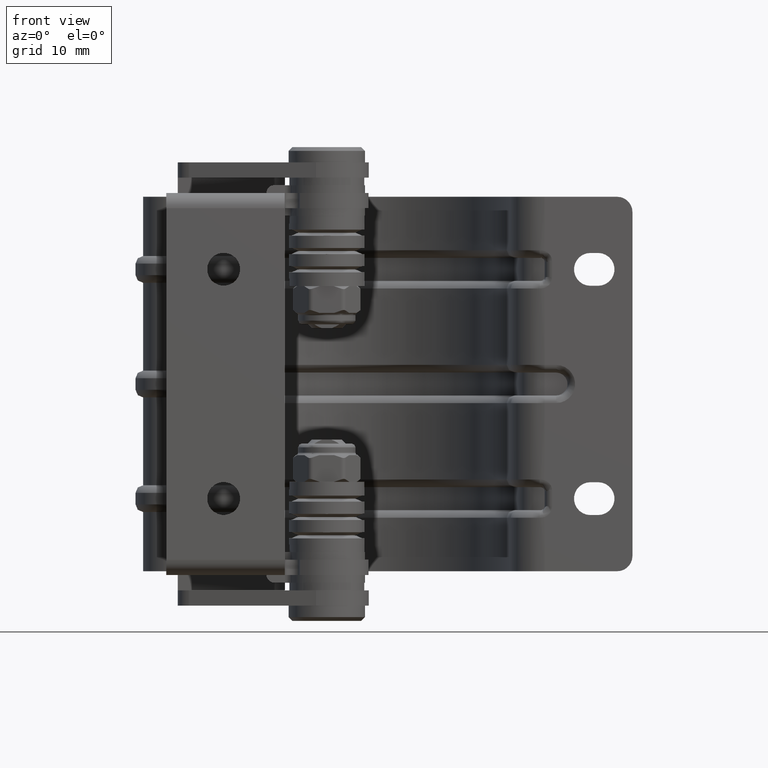
[diagram: clean part render]
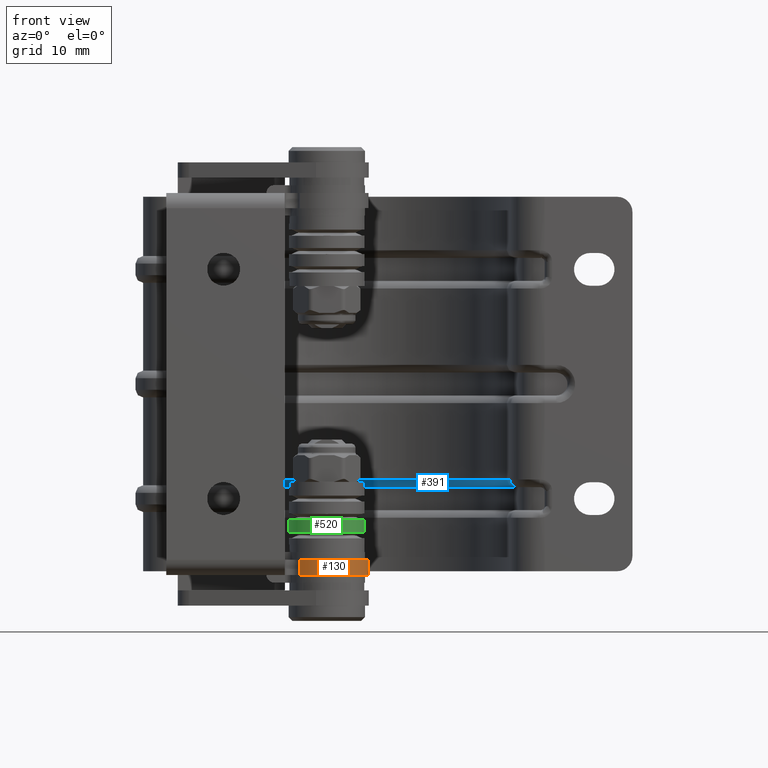
[diagram: same view with three faces highlighted in distinct colors, each labeled with its STEP entity id]
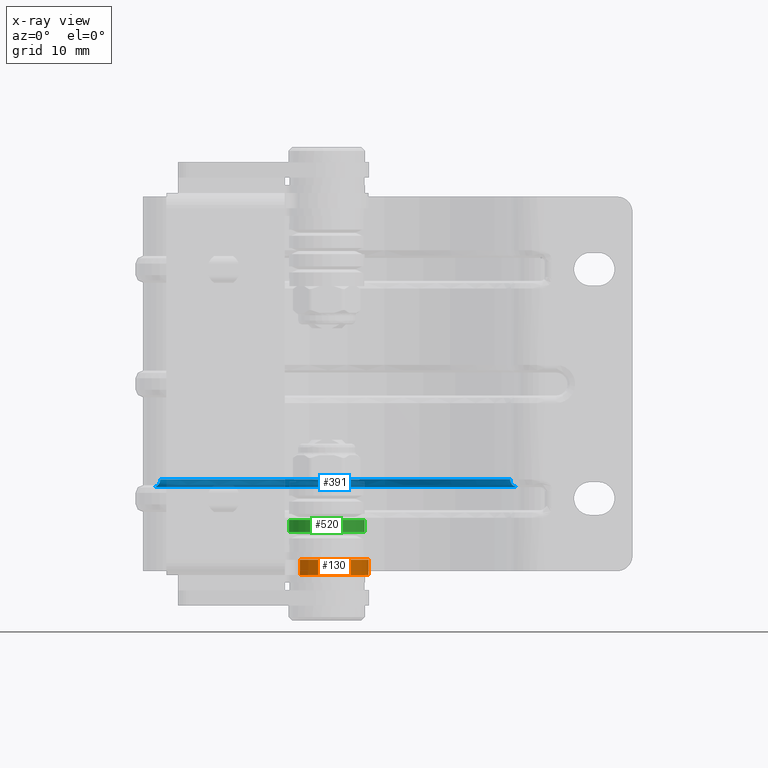
[diagram: x-ray of the same camera — body ghosted, the three highlighted faces saturated]
A machine part, front view with three faces highlighted in distinct colors.
The next image is the same camera in x-ray (body ghosted, the three faces saturated) — at least one of them is partly hidden behind the body in this view.
Their STEP definitions:

[orange] entity #130 — the highlighted cylindrical surface (partial cylindrical patch) has radius 5.5 mm, axis along (0, 0, -1).
#130=ADVANCED_FACE('',(#755),#754,.T.);
#754=CYLINDRICAL_SURFACE('',#5247,5.50000000000E+00);
#755=FACE_OUTER_BOUND('',#5248,.T.);
#5244=CARTESIAN_POINT('',(0.00000000000E+00,0.00000000000E+00,-2.40000000000E+01));
#5245=DIRECTION('',(-0.00000000000E+00,0.00000000000E+00,-1.00000000000E+00));
#5246=DIRECTION('',(-1.00000000000E+00,-0.00000000000E+00,-0.00000000000E+00));
#5247=AXIS2_PLACEMENT_3D('',#5244,#5245,#5246);
#5248=EDGE_LOOP('',(#9694,#9695,#9696,#9697));
#9694=ORIENTED_EDGE('',*,*,#11793,.T.);
#9695=ORIENTED_EDGE('',*,*,#11829,.F.);
#9696=ORIENTED_EDGE('',*,*,#11811,.T.);
#9697=ORIENTED_EDGE('',*,*,#11830,.F.);
#11793=EDGE_CURVE('',#13199,#13200,#13201,.T.);
#11811=EDGE_CURVE('',#13323,#13316,#13324,.T.);
#11829=EDGE_CURVE('',#13323,#13200,#13442,.T.);
#11830=EDGE_CURVE('',#13199,#13316,#13448,.T.);
#13199=VERTEX_POINT('',#20250);
#13200=VERTEX_POINT('',#20251);
#13201=CIRCLE('',#20255,5.50000000000E+00);
#13316=VERTEX_POINT('',#20324);
#13323=VERTEX_POINT('',#20328);
#13324=CIRCLE('',#20332,5.50000000000E+00);
#13442=LINE('',#20402,#20403);
#13448=LINE('',#20405,#20406);
#20250=CARTESIAN_POINT('',(-3.50000000000E+00,-4.24264068712E+00,-2.50000000000E+01));
#20251=CARTESIAN_POINT('',(-3.50000000000E+00,4.24264068712E+00,-2.50000000000E+01));
#20252=CARTESIAN_POINT('',(0.00000000000E+00,0.00000000000E+00,-2.50000000000E+01));
#20253=DIRECTION('',(0.00000000000E+00,0.00000000000E+00,1.00000000000E+00));
#20254=DIRECTION('',(-6.36363636363E-01,-7.71389215840E-01,0.00000000000E+00));
#20255=AXIS2_PLACEMENT_3D('',#20252,#20253,#20254);
#20324=CARTESIAN_POINT('',(-3.50000000000E+00,-4.24264068712E+00,-2.30000000000E+01));
#20328=CARTESIAN_POINT('',(-3.50000000000E+00,4.24264068712E+00,-2.30000000000E+01));
#20329=CARTESIAN_POINT('',(0.00000000000E+00,0.00000000000E+00,-2.30000000000E+01));
#20330=DIRECTION('',(0.00000000000E+00,0.00000000000E+00,-1.00000000000E+00));
#20331=DIRECTION('',(-1.00000000000E+00,-0.00000000000E+00,-0.00000000000E+00));
#20332=AXIS2_PLACEMENT_3D('',#20329,#20330,#20331);
#20402=CARTESIAN_POINT('',(-3.50000000000E+00,4.24264068712E+00,-2.30000000000E+01));
#20403=VECTOR('',#20404,2.00000000000E+00);
#20404=DIRECTION('',(0.00000000000E+00,0.00000000000E+00,-1.00000000000E+00));
#20405=CARTESIAN_POINT('',(-3.50000000000E+00,-4.24264068712E+00,-2.50000000000E+01));
#20406=VECTOR('',#20407,2.00000000001E+00);
#20407=DIRECTION('',(0.00000000000E+00,0.00000000000E+00,1.00000000000E+00));

[blue] entity #391 — the highlighted face is a freeform B-spline surface patch.
#391=ADVANCED_FACE('',(#3393),#3392,.T.);
#3392=( BOUNDED_SURFACE() B_SPLINE_SURFACE( 2,2,((#7688,#7689,#7690,#7691,#7692),(#7693,#7694,#7695,#7696,#7697),(#7698,#7699,#7700,#7701,#7702),(#7703,#7704,#7705,#7706,#7707),(#7708,#7709,#7710,#7711,#7712),(#7713,#7714,#7715,#7716,#7717),(#7718,#7719,#7720,#7721,#7722)), .UNSPECIFIED.,.T.,.F.,.F.) B_SPLINE_SURFACE_WITH_KNOTS((3,2,2,3),(3,2,3),(0.00000000000E+00,3.33333333333E-01,6.66666666667E-01,1.00000000000E+00),(0.00000000000E+00,5.00000000000E-01,1.00000000000E+00), .UNSPECIFIED. ) GEOMETRIC_REPRESENTATION_ITEM() RATIONAL_B_SPLINE_SURFACE(((1.00000000000E+00,7.07106781187E-01,1.00000000000E+00,7.07106781187E-01,1.00000000000E+00),(5.00000000000E-01,3.53553390593E-01,5.00000000000E-01,3.53553390593E-01,5.00000000000E-01),(1.00000000000E+00,7.07106781187E-01,1.00000000000E+00,7.07106781187E-01,1.00000000000E+00),(5.00000000000E-01,3.53553390593E-01,5.00000000000E-01,3.53553390593E-01,5.00000000000E-01),(1.00000000000E+00,7.07106781187E-01,1.00000000000E+00,7.07106781187E-01,1.00000000000E+00),(5.00000000000E-01,3.53553390593E-01,5.00000000000E-01,3.53553390593E-01,5.00000000000E-01),(1.00000000000E+00,7.07106781187E-01,1.00000000000E+00,7.07106781187E-01,1.00000000000E+00))) REPRESENTATION_ITEM('') SURFACE() );
#3393=FACE_OUTER_BOUND('',#7723,.T.);
#7688=CARTESIAN_POINT('',(1.25000000000E+01,2.54780423210E+01,5.18356629757E+00));
#7689=CARTESIAN_POINT('',(1.35000000000E+01,2.54780423210E+01,5.18356629757E+00));
#7690=CARTESIAN_POINT('',(1.35000000000E+01,2.44981176164E+01,4.98419836315E+00));
#7691=CARTESIAN_POINT('',(1.35000000000E+01,2.35181929118E+01,4.78483042874E+00));
#7692=CARTESIAN_POINT('',(1.25000000000E+01,2.35181929118E+01,4.78483042874E+00));
#7693=CARTESIAN_POINT('',(1.25000000000E+01,1.64998421336E+01,4.93128300750E+01));
#7694=CARTESIAN_POINT('',(1.35000000000E+01,1.64998421336E+01,4.93128300750E+01));
#7695=CARTESIAN_POINT('',(1.35000000000E+01,1.58652328208E+01,4.74161827646E+01));
#7696=CARTESIAN_POINT('',(1.35000000000E+01,1.52306235080E+01,4.55195354542E+01));
#7697=CARTESIAN_POINT('',(1.25000000000E+01,1.52306235080E+01,4.55195354542E+01));
#7698=CARTESIAN_POINT('',(1.25000000000E+01,-1.72281212542E+01,1.94728487437E+01));
#7699=CARTESIAN_POINT('',(1.35000000000E+01,-1.72281212542E+01,1.94728487437E+01));
#7700=CARTESIAN_POINT('',(1.35000000000E+01,-1.65655012060E+01,1.87238930230E+01));
#7701=CARTESIAN_POINT('',(1.35000000000E+01,-1.59028811578E+01,1.79749373022E+01));
#7702=CARTESIAN_POINT('',(1.25000000000E+01,-1.59028811578E+01,1.79749373022E+01));
#7703=CARTESIAN_POINT('',(1.25000000000E+01,-5.09560846421E+01,-1.03671325875E+01));
#7704=CARTESIAN_POINT('',(1.35000000000E+01,-5.09560846421E+01,-1.03671325875E+01));
#7705=CARTESIAN_POINT('',(1.35000000000E+01,-4.89962352328E+01,-9.96839671869E+00));
#7706=CARTESIAN_POINT('',(1.35000000000E+01,-4.70363858236E+01,-9.56966084985E+00));
#7707=CARTESIAN_POINT('',(1.25000000000E+01,-4.70363858236E+01,-9.56966084985E+00));
#7708=CARTESIAN_POINT('',(1.25000000000E+01,-8.24992106682E+00,-2.46564150337E+01));
#7709=CARTESIAN_POINT('',(1.35000000000E+01,-8.24992106682E+00,-2.46564150337E+01));
#7710=CARTESIAN_POINT('',(1.35000000000E+01,-7.93261641042E+00,-2.37080913785E+01));
#7711=CARTESIAN_POINT('',(1.35000000000E+01,-7.61531175401E+00,-2.27597677233E+01));
#7712=CARTESIAN_POINT('',(1.25000000000E+01,-7.61531175401E+00,-2.27597677233E+01));
#7713=CARTESIAN_POINT('',(1.25000000000E+01,3.44562425084E+01,-3.89456974799E+01));
#7714=CARTESIAN_POINT('',(1.35000000000E+01,3.44562425084E+01,-3.89456974799E+01));
#7715=CARTESIAN_POINT('',(1.35000000000E+01,3.31310024120E+01,-3.74477860383E+01));
#7716=CARTESIAN_POINT('',(1.35000000000E+01,3.18057623156E+01,-3.59498745967E+01));
#7717=CARTESIAN_POINT('',(1.25000000000E+01,3.18057623156E+01,-3.59498745967E+01));
#7718=CARTESIAN_POINT('',(1.25000000000E+01,2.54780423210E+01,5.18356629757E+00));
#7719=CARTESIAN_POINT('',(1.35000000000E+01,2.54780423210E+01,5.18356629757E+00));
#7720=CARTESIAN_POINT('',(1.35000000000E+01,2.44981176164E+01,4.98419836315E+00));
#7721=CARTESIAN_POINT('',(1.35000000000E+01,2.35181929118E+01,4.78483042874E+00));
#7722=CARTESIAN_POINT('',(1.25000000000E+01,2.35181929118E+01,4.78483042874E+00));
#7723=EDGE_LOOP('',(#10906,#10907,#10908,#10909));
#10906=ORIENTED_EDGE('',*,*,#12540,.T.);
#10907=ORIENTED_EDGE('',*,*,#12526,.F.);
#10908=ORIENTED_EDGE('',*,*,#12538,.F.);
#10909=ORIENTED_EDGE('',*,*,#11884,.T.);
#11884=EDGE_CURVE('',#13799,#13779,#13800,.T.);
#12526=EDGE_CURVE('',#15353,#18090,#18103,.T.);
#12538=EDGE_CURVE('',#13799,#15353,#18180,.T.);
#12540=EDGE_CURVE('',#13779,#18090,#18192,.T.);
#13779=VERTEX_POINT('',#20604);
#13799=VERTEX_POINT('',#20616);
#13800=CIRCLE('',#20620,2.50000000009E+01);
#15353=VERTEX_POINT('',#21633);
#18090=VERTEX_POINT('',#23761);
#18103=CIRCLE('',#23771,2.40000000009E+01);
#18180=CIRCLE('',#23817,1.00000000000E+00);
#18192=CIRCLE('',#23825,1.00000000000E+00);
#20604=CARTESIAN_POINT('',(1.35000000000E+01,-1.11947138034E-09,-2.50000000007E+01));
#20616=CARTESIAN_POINT('',(1.35000000000E+01,-1.04651162805E+01,2.27042141753E+01));
#20617=CARTESIAN_POINT('',(1.35000000000E+01,-1.11946678792E-09,2.63700172809E-10));
#20618=DIRECTION('',(1.00000000000E+00,-2.44929359829E-16,0.00000000000E+00));
#20619=DIRECTION('',(-0.00000000000E+00,-0.00000000000E+00,-1.00000000000E+00));
#20620=AXIS2_PLACEMENT_3D('',#20617,#20618,#20619);
#21633=CARTESIAN_POINT('',(1.25000000000E+01,-1.00465116282E+01,2.17960456106E+01));
#23761=CARTESIAN_POINT('',(1.25000000000E+01,-5.87830463613E-15,-2.39999999984E+01));
#23768=CARTESIAN_POINT('',(1.25000000000E+01,-4.40872847710E-15,2.54019383306E-09));
#23769=DIRECTION('',(1.00000000000E+00,-2.44929359829E-16,1.23259516441E-32));
#23770=DIRECTION('',(-1.02528569230E-16,-4.18604651160E-01,9.08168566967E-01));
#23771=AXIS2_PLACEMENT_3D('',#23768,#23769,#23770);
#23814=CARTESIAN_POINT('',(1.25000000000E+01,-1.04651162794E+01,2.27042141776E+01));
#23815=DIRECTION('',(-1.03397576569E-25,9.08168566977E-01,4.18604651139E-01));
#23816=DIRECTION('',(1.00000000000E+00,6.69274419356E-10,-1.45200008812E-09));
#23817=AXIS2_PLACEMENT_3D('',#23814,#23815,#23816);
#23822=CARTESIAN_POINT('',(1.25000000000E+01,-5.93953697609E-15,-2.49999999984E+01));
#23823=DIRECTION('',(-2.44929359829E-16,-1.00000000000E+00,6.12323399574E-17));
#23824=DIRECTION('',(-1.00000000000E+00,2.44929359829E-16,-0.00000000000E+00));
#23825=AXIS2_PLACEMENT_3D('',#23822,#23823,#23824);

[green] entity #520 — the highlighted cylindrical surface (partial cylindrical patch) has radius 4.95 mm, axis along (0, 0, 1).
#520=ADVANCED_FACE('',(#4687),#4686,.T.);
#4686=CYLINDRICAL_SURFACE('',#8963,4.95000000000E+00);
#4687=FACE_OUTER_BOUND('',#8964,.T.);
#8960=CARTESIAN_POINT('',(3.72000000000E+01,0.00000000000E+00,0.00000000000E+00));
#8961=DIRECTION('',(-1.00000000000E+00,-0.00000000000E+00,-0.00000000000E+00));
#8962=DIRECTION('',(-0.00000000000E+00,-0.00000000000E+00,1.00000000000E+00));
#8963=AXIS2_PLACEMENT_3D('',#8960,#8961,#8962);
#8964=EDGE_LOOP('',(#11526,#11527,#11528,#11529));
#11526=ORIENTED_EDGE('',*,*,#12342,.F.);
#11527=ORIENTED_EDGE('',*,*,#12746,.F.);
#11528=ORIENTED_EDGE('',*,*,#12337,.T.);
#11529=ORIENTED_EDGE('',*,*,#12747,.T.);
#12337=EDGE_CURVE('',#16852,#16853,#16854,.T.);
#12342=EDGE_CURVE('',#16881,#16880,#16888,.T.);
#12746=EDGE_CURVE('',#16852,#16881,#19508,.T.);
#12747=EDGE_CURVE('',#16853,#16880,#19514,.T.);
#16852=VERTEX_POINT('',#22831);
#16853=VERTEX_POINT('',#22832);
#16854=CIRCLE('',#22836,4.95000000000E+00);
#16880=VERTEX_POINT('',#22851);
#16881=VERTEX_POINT('',#22852);
#16888=CIRCLE('',#22860,4.95000000000E+00);
#19508=(BOUNDED_CURVE() B_SPLINE_CURVE(1,(#24564,#24565),.UNSPECIFIED.,.F.,.F.) B_SPLINE_CURVE_WITH_KNOTS((2,2),(8.33333134656E-02,9.16666653270E-01),.UNSPECIFIED.) CURVE() GEOMETRIC_REPRESENTATION_ITEM() RATIONAL_B_SPLINE_CURVE((1.00000000000E+00,1.00000000000E+00)) REPRESENTATION_ITEM('') );
#19514=(BOUNDED_CURVE() B_SPLINE_CURVE(1,(#24566,#24567),.UNSPECIFIED.,.F.,.F.) B_SPLINE_CURVE_WITH_KNOTS((2,2),(8.33333333333E-02,9.16666666667E-01),.UNSPECIFIED.) CURVE() GEOMETRIC_REPRESENTATION_ITEM() RATIONAL_B_SPLINE_CURVE((7.50000000000E-01,7.50000000000E-01)) REPRESENTATION_ITEM('') );
#22831=CARTESIAN_POINT('',(1.94000000000E+01,-2.96059473233E-16,4.95000000000E+00));
#22832=CARTESIAN_POINT('',(1.94000000000E+01,0.00000000000E+00,-4.95000000000E+00));
#22833=CARTESIAN_POINT('',(1.94000000000E+01,0.00000000000E+00,0.00000000000E+00));
#22834=DIRECTION('',(-1.00000000000E+00,0.00000000000E+00,0.00000000000E+00));
#22835=DIRECTION('',(0.00000000000E+00,1.22460635382E-16,-1.00000000000E+00));
#22836=AXIS2_PLACEMENT_3D('',#22833,#22834,#22835);
#22851=CARTESIAN_POINT('',(1.78000000000E+01,0.00000000000E+00,-4.95000000000E+00));
#22852=CARTESIAN_POINT('',(1.78000000000E+01,-2.96059473233E-16,4.95000000000E+00));
#22857=CARTESIAN_POINT('',(1.78000000000E+01,0.00000000000E+00,0.00000000000E+00));
#22858=DIRECTION('',(-1.00000000000E+00,0.00000000000E+00,0.00000000000E+00));
#22859=DIRECTION('',(0.00000000000E+00,1.22460635382E-16,-1.00000000000E+00));
#22860=AXIS2_PLACEMENT_3D('',#22857,#22858,#22859);
#24564=CARTESIAN_POINT('',(1.94000000381E+01,0.00000000000E+00,4.95000000000E+00));
#24565=CARTESIAN_POINT('',(1.78000000257E+01,0.00000000000E+00,4.95000000000E+00));
#24566=CARTESIAN_POINT('',(1.94000000000E+01,-2.96059473233E-16,-4.95000000000E+00));
#24567=CARTESIAN_POINT('',(1.78000000000E+01,-2.96059473233E-16,-4.95000000000E+00));